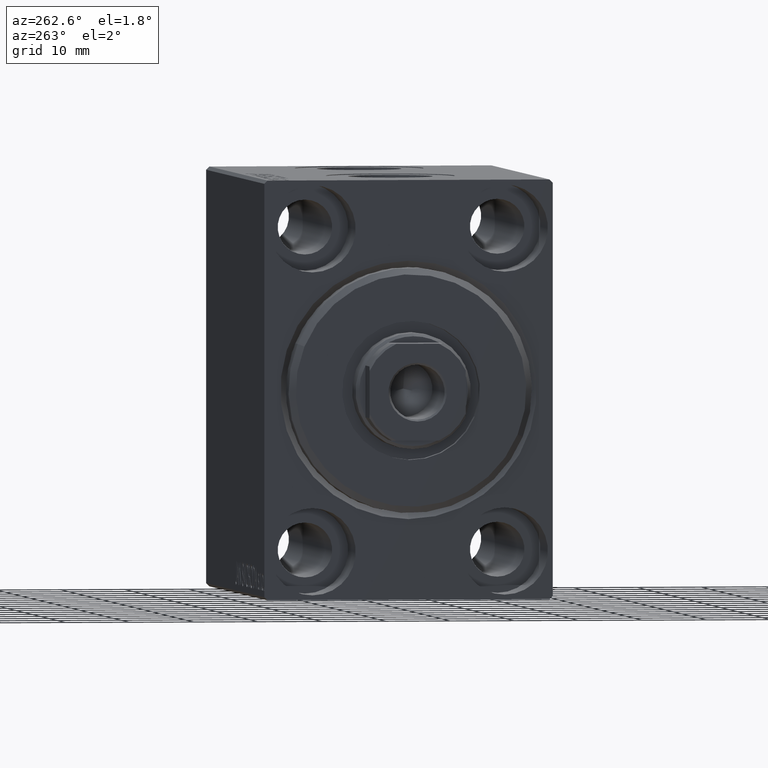
[diagram: clean part render]
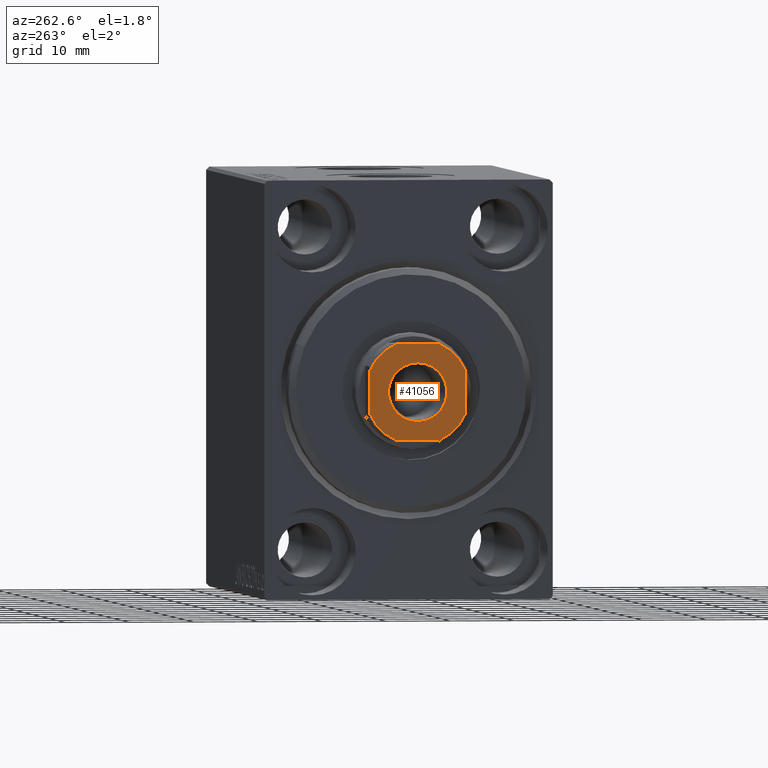
[diagram: same view with one face highlighted and labeled with its STEP entity id]
A machine part, auxiliary view. The second image highlights one B-rep face of the part: STEP entity #41056.
In plain terms, the highlighted planar face has unit normal (-1, 0, 0).
Its self-contained STEP definition (entity closure, byte-faithful):
#144 = CARTESIAN_POINT ( 'NONE',  ( 0.000000000000000000, 0.000000000000000000, 75.00000000000001421 ) ) ;
#470 = ORIENTED_EDGE ( 'NONE', *, *, #13663, .T. ) ;
#777 = AXIS2_PLACEMENT_3D ( 'NONE', #16661, #27775, #3953 ) ;
#1728 = DIRECTION ( 'NONE',  ( 1.000000000000000000, 0.000000000000000000, 0.000000000000000000 ) ) ;
#1878 = VECTOR ( 'NONE', #16627, 1000.000000000000000 ) ;
#2217 = CARTESIAN_POINT ( 'NONE',  ( -7.500000000000001776, 7.500000000000001776, 75.00000000000001421 ) ) ;
#3051 = LINE ( 'NONE', #23529, #1878 ) ;
#3953 = DIRECTION ( 'NONE',  ( 1.000000000000000000, 0.000000000000000000, 0.000000000000000000 ) ) ;
#4039 = EDGE_CURVE ( 'NONE', #36232, #41157, #6221, .T. ) ;
#6019 = CARTESIAN_POINT ( 'NONE',  ( -7.499999999999999112, -3.315116890850218212, 75.00000000000001421 ) ) ;
#6221 = CIRCLE ( 'NONE', #15449, 8.200000000000011724 ) ;
#7788 = CIRCLE ( 'NONE', #31225, 4.549999999999991829 ) ;
#8456 = DIRECTION ( 'NONE',  ( -1.000000000000000000, 5.782411586589357392E-17, -0.000000000000000000 ) ) ;
#8563 = VERTEX_POINT ( 'NONE', #14803 ) ;
#9159 = EDGE_CURVE ( 'NONE', #34236, #8563, #38934, .T. ) ;
#9485 = EDGE_CURVE ( 'NONE', #8563, #17209, #15611, .T. ) ;
#9705 = CIRCLE ( 'NONE', #31034, 8.200000000000024158 ) ;
#9756 = EDGE_CURVE ( 'NONE', #17209, #31290, #31677, .T. ) ;
#9800 = VERTEX_POINT ( 'NONE', #19846 ) ;
#10144 = FACE_BOUND ( 'NONE', #19708, .T. ) ;
#10186 = ORIENTED_EDGE ( 'NONE', *, *, #9485, .T. ) ;
#10354 = DIRECTION ( 'NONE',  ( 1.000000000000000000, 0.000000000000000000, 0.000000000000000000 ) ) ;
#10816 = DIRECTION ( 'NONE',  ( -0.000000000000000000, 0.000000000000000000, 1.000000000000000000 ) ) ;
#11425 = CARTESIAN_POINT ( 'NONE',  ( -7.500000000000001776, 7.500000000000001776, 75.00000000000001421 ) ) ;
#11807 = EDGE_CURVE ( 'NONE', #41157, #18189, #21424, .T. ) ;
#12937 = EDGE_LOOP ( 'NONE', ( #24945, #25018, #34182, #10186, #39002, #15668, #33409, #34949 ) ) ;
#13663 = EDGE_CURVE ( 'NONE', #9800, #17017, #18542, .T. ) ;
#13702 = DIRECTION ( 'NONE',  ( -0.000000000000000000, 0.000000000000000000, 1.000000000000000000 ) ) ;
#14803 = CARTESIAN_POINT ( 'NONE',  ( -3.315116890850159148, 7.500000000000000888, 75.00000000000001421 ) ) ;
#14828 = DIRECTION ( 'NONE',  ( 1.000000000000000000, 0.000000000000000000, 0.000000000000000000 ) ) ;
#15449 = AXIS2_PLACEMENT_3D ( 'NONE', #17495, #10816, #14828 ) ;
#15611 = CIRCLE ( 'NONE', #41894, 8.200000000000002842 ) ;
#15668 = ORIENTED_EDGE ( 'NONE', *, *, #22057, .T. ) ;
#16627 = DIRECTION ( 'NONE',  ( 1.000000000000000000, 0.000000000000000000, 0.000000000000000000 ) ) ;
#16661 = CARTESIAN_POINT ( 'NONE',  ( 0.000000000000000000, 0.000000000000000000, 75.00000000000001421 ) ) ;
#17017 = VERTEX_POINT ( 'NONE', #28356 ) ;
#17053 = FACE_OUTER_BOUND ( 'NONE', #12937, .T. ) ;
#17209 = VERTEX_POINT ( 'NONE', #41204 ) ;
#17292 = CARTESIAN_POINT ( 'NONE',  ( 0.000000000000000000, 0.000000000000000000, 75.00000000000001421 ) ) ;
#17495 = CARTESIAN_POINT ( 'NONE',  ( 0.000000000000000000, 0.000000000000000000, 75.00000000000001421 ) ) ;
#18189 = VERTEX_POINT ( 'NONE', #39412 ) ;
#18271 = EDGE_CURVE ( 'NONE', #18189, #34236, #37443, .T. ) ;
#18542 = CIRCLE ( 'NONE', #777, 4.549999999999991829 ) ;
#19171 = CARTESIAN_POINT ( 'NONE',  ( 0.000000000000000000, 0.000000000000000000, 75.00000000000001421 ) ) ;
#19388 = DIRECTION ( 'NONE',  ( -0.000000000000000000, 0.000000000000000000, 1.000000000000000000 ) ) ;
#19708 = EDGE_LOOP ( 'NONE', ( #470, #26130 ) ) ;
#19846 = CARTESIAN_POINT ( 'NONE',  ( 4.549999999999991829, 0.000000000000000000, 75.00000000000001421 ) ) ;
#20758 = EDGE_CURVE ( 'NONE', #39692, #36232, #3051, .T. ) ;
#21424 = LINE ( 'NONE', #35190, #26308 ) ;
#21642 = DIRECTION ( 'NONE',  ( -1.156482317317871478E-16, 1.000000000000000000, -0.000000000000000000 ) ) ;
#22057 = EDGE_CURVE ( 'NONE', #31290, #39692, #9705, .T. ) ;
#22212 = CARTESIAN_POINT ( 'NONE',  ( 0.000000000000000000, 0.000000000000000000, 75.00000000000001421 ) ) ;
#22872 = AXIS2_PLACEMENT_3D ( 'NONE', #144, #13702, #10354 ) ;
#23284 = DIRECTION ( 'NONE',  ( 1.000000000000000000, 0.000000000000000000, 0.000000000000000000 ) ) ;
#23420 = VECTOR ( 'NONE', #8456, 1000.000000000000000 ) ;
#23529 = CARTESIAN_POINT ( 'NONE',  ( -7.499999999999999112, -7.499999999999998224, 75.00000000000001421 ) ) ;
#24893 = DIRECTION ( 'NONE',  ( -0.000000000000000000, 0.000000000000000000, 1.000000000000000000 ) ) ;
#24945 = ORIENTED_EDGE ( 'NONE', *, *, #11807, .T. ) ;
#25008 = DIRECTION ( 'NONE',  ( 1.734723475976807094E-16, -1.000000000000000000, 0.000000000000000000 ) ) ;
#25018 = ORIENTED_EDGE ( 'NONE', *, *, #18271, .T. ) ;
#26130 = ORIENTED_EDGE ( 'NONE', *, *, #29787, .T. ) ;
#26308 = VECTOR ( 'NONE', #21642, 1000.000000000000000 ) ;
#26677 = CARTESIAN_POINT ( 'NONE',  ( 3.315116890850187126, 7.500000000000000888, 75.00000000000001421 ) ) ;
#27702 = VECTOR ( 'NONE', #25008, 1000.000000000000000 ) ;
#27775 = DIRECTION ( 'NONE',  ( 0.000000000000000000, -0.000000000000000000, -1.000000000000000000 ) ) ;
#28356 = CARTESIAN_POINT ( 'NONE',  ( -4.549999999999991829, 5.572142936120446480E-16, 75.00000000000001421 ) ) ;
#29787 = EDGE_CURVE ( 'NONE', #17017, #9800, #7788, .T. ) ;
#30613 = PLANE ( 'NONE',  #22872 ) ;
#31034 = AXIS2_PLACEMENT_3D ( 'NONE', #40169, #33507, #23284 ) ;
#31225 = AXIS2_PLACEMENT_3D ( 'NONE', #17292, #34408, #34192 ) ;
#31290 = VERTEX_POINT ( 'NONE', #6019 ) ;
#31677 = LINE ( 'NONE', #11425, #27702 ) ;
#33409 = ORIENTED_EDGE ( 'NONE', *, *, #20758, .T. ) ;
#33507 = DIRECTION ( 'NONE',  ( -0.000000000000000000, 0.000000000000000000, 1.000000000000000000 ) ) ;
#34182 = ORIENTED_EDGE ( 'NONE', *, *, #9159, .T. ) ;
#34192 = DIRECTION ( 'NONE',  ( 1.000000000000000000, 0.000000000000000000, 0.000000000000000000 ) ) ;
#34236 = VERTEX_POINT ( 'NONE', #26677 ) ;
#34408 = DIRECTION ( 'NONE',  ( 0.000000000000000000, -0.000000000000000000, -1.000000000000000000 ) ) ;
#34949 = ORIENTED_EDGE ( 'NONE', *, *, #4039, .T. ) ;
#35190 = CARTESIAN_POINT ( 'NONE',  ( 7.499999999999997335, 7.500000000000000888, 75.00000000000001421 ) ) ;
#36232 = VERTEX_POINT ( 'NONE', #41877 ) ;
#36721 = CARTESIAN_POINT ( 'NONE',  ( -3.315116890850222653, -7.499999999999998224, 75.00000000000001421 ) ) ;
#37443 = CIRCLE ( 'NONE', #41000, 8.200000000000013500 ) ;
#38934 = LINE ( 'NONE', #2217, #23420 ) ;
#39002 = ORIENTED_EDGE ( 'NONE', *, *, #9756, .T. ) ;
#39412 = CARTESIAN_POINT ( 'NONE',  ( 7.499999999999998224, 3.315116890850192899, 75.00000000000001421 ) ) ;
#39692 = VERTEX_POINT ( 'NONE', #36721 ) ;
#39846 = DIRECTION ( 'NONE',  ( 1.000000000000000000, 0.000000000000000000, 0.000000000000000000 ) ) ;
#40169 = CARTESIAN_POINT ( 'NONE',  ( 0.000000000000000000, 0.000000000000000000, 75.00000000000001421 ) ) ;
#41000 = AXIS2_PLACEMENT_3D ( 'NONE', #19171, #19388, #39846 ) ;
#41056 = ADVANCED_FACE ( 'NONE', ( #10144, #17053 ), #30613, .T. ) ;
#41157 = VERTEX_POINT ( 'NONE', #41974 ) ;
#41204 = CARTESIAN_POINT ( 'NONE',  ( -7.500000000000000888, 3.315116890850160036, 75.00000000000001421 ) ) ;
#41877 = CARTESIAN_POINT ( 'NONE',  ( 3.315116890850187570, -7.499999999999996447, 75.00000000000001421 ) ) ;
#41894 = AXIS2_PLACEMENT_3D ( 'NONE', #22212, #24893, #1728 ) ;
#41974 = CARTESIAN_POINT ( 'NONE',  ( 7.499999999999998224, -3.315116890850184461, 75.00000000000001421 ) ) ;